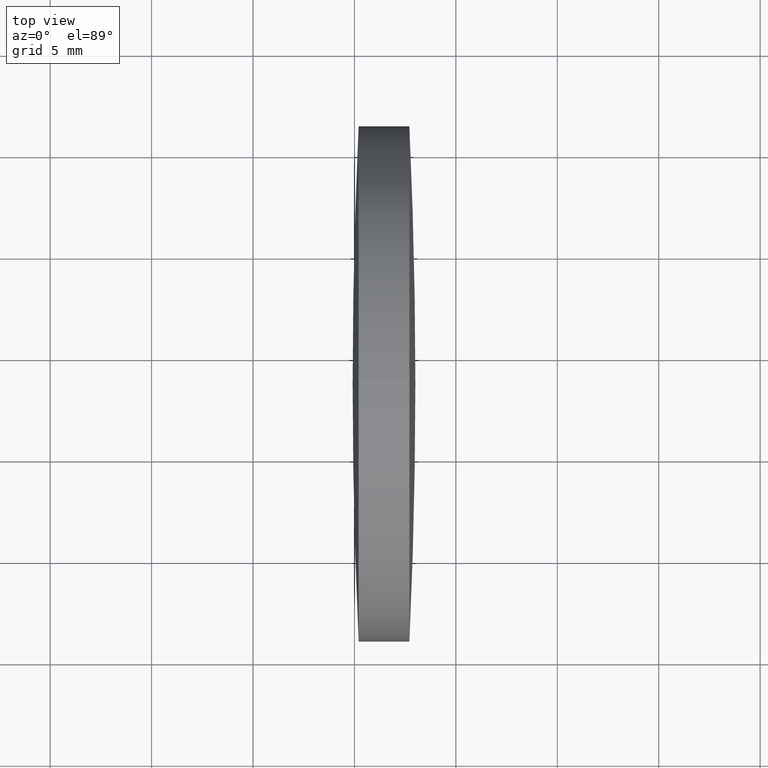
[diagram: clean part render]
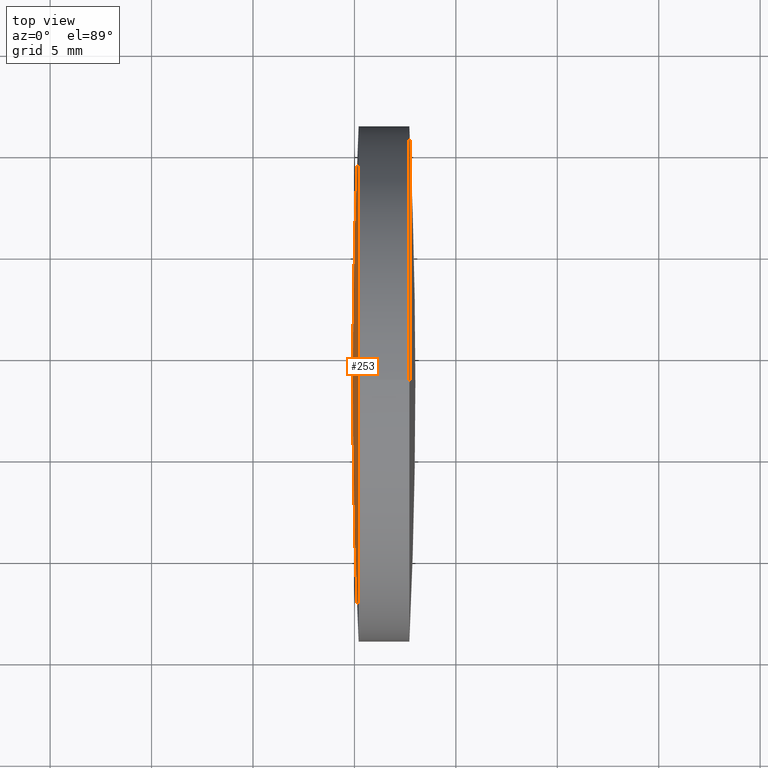
[diagram: same view with one face highlighted and labeled with its STEP entity id]
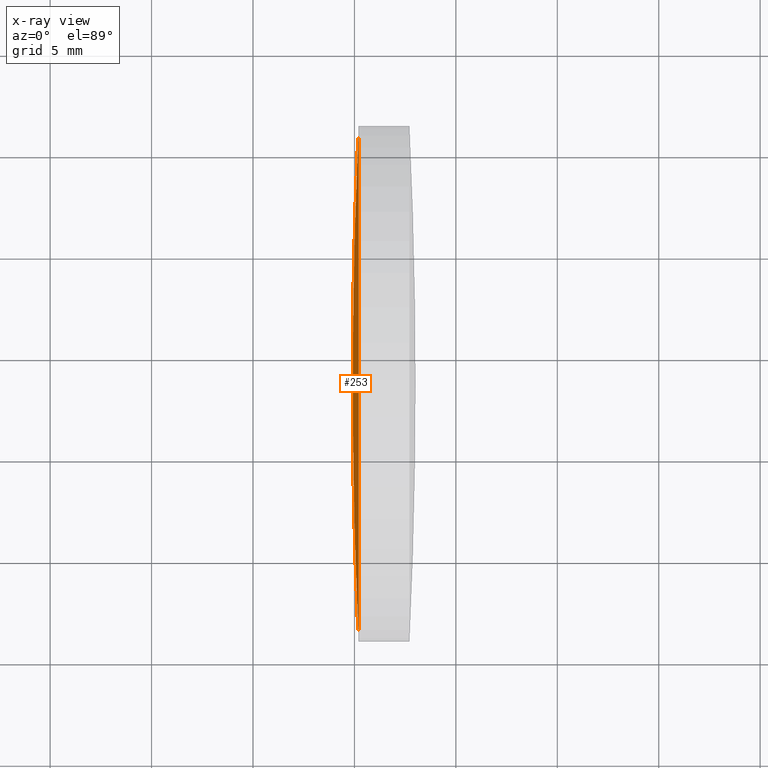
[diagram: x-ray of the same camera — body ghosted, the highlighted face saturated]
A machine part, top view. The second image highlights one B-rep face of the part: STEP entity #253.
The next image is the same camera in x-ray: the body ghosted, the highlighted face saturated — about 0% of this face is hidden behind the body in this view.
In plain terms, the highlighted spherical surface has radius 273.559 mm.
Its self-contained STEP definition (entity closure, byte-faithful):
#8 = DIRECTION ( 'NONE',  ( 0.0000000000000000000, 1.000000000000000000, 1.224646799147353200E-016 ) ) ;
#31 = CARTESIAN_POINT ( 'NONE',  ( 85.20819446037681600, 48.61611302318478100, 0.0000000000000000000 ) ) ;
#41 = CIRCLE ( 'NONE', #137, 12.69999999999999600 ) ;
#44 = CARTESIAN_POINT ( 'NONE',  ( 358.4720611425593100, 48.61611302318401300, 0.0000000000000000000 ) ) ;
#45 = ORIENTED_EDGE ( 'NONE', *, *, #302, .T. ) ;
#58 = ORIENTED_EDGE ( 'NONE', *, *, #92, .T. ) ;
#66 = EDGE_CURVE ( 'NONE', #178, #243, #69, .T. ) ;
#69 = CIRCLE ( 'NONE', #326, 273.5588251804310300 ) ;
#92 = EDGE_CURVE ( 'NONE', #178, #162, #41, .T. ) ;
#116 = DIRECTION ( 'NONE',  ( -0.0000000000000000000, 0.0000000000000000000, -1.000000000000000000 ) ) ;
#120 = CIRCLE ( 'NONE', #280, 12.69999999999999600 ) ;
#123 = FACE_OUTER_BOUND ( 'NONE', #157, .T. ) ;
#126 = AXIS2_PLACEMENT_3D ( 'NONE', #147, #116, #291 ) ;
#137 = AXIS2_PLACEMENT_3D ( 'NONE', #31, #224, #310 ) ;
#147 = CARTESIAN_POINT ( 'NONE',  ( 358.4720611425593100, 48.61611302318401300, 0.0000000000000000000 ) ) ;
#157 = EDGE_LOOP ( 'NONE', ( #247, #58, #45, #267 ) ) ;
#162 = VERTEX_POINT ( 'NONE', #289 ) ;
#178 = VERTEX_POINT ( 'NONE', #204 ) ;
#182 = DIRECTION ( 'NONE',  ( 1.000000000000000000, 0.0000000000000000000, 0.0000000000000000000 ) ) ;
#204 = CARTESIAN_POINT ( 'NONE',  ( 85.20819446037680200, 35.91611302318423100, -1.555301434917111200E-015 ) ) ;
#205 = AXIS2_PLACEMENT_3D ( 'NONE', #44, #213, #182 ) ;
#210 = CARTESIAN_POINT ( 'NONE',  ( 85.20819446037681600, 48.61611302318478100, 0.0000000000000000000 ) ) ;
#213 = DIRECTION ( 'NONE',  ( -0.0000000000000000000, 0.0000000000000000000, 1.000000000000000000 ) ) ;
#215 = DIRECTION ( 'NONE',  ( 0.0000000000000000000, 0.0000000000000000000, 1.000000000000000000 ) ) ;
#223 = DIRECTION ( 'NONE',  ( 0.0000000000000000000, 1.224646799147353200E-016, -1.000000000000000000 ) ) ;
#224 = DIRECTION ( 'NONE',  ( -1.000000000000000000, -0.0000000000000000000, -0.0000000000000000000 ) ) ;
#239 = DIRECTION ( 'NONE',  ( -1.000000000000000000, -0.0000000000000000000, -0.0000000000000000000 ) ) ;
#243 = VERTEX_POINT ( 'NONE', #312 ) ;
#247 = ORIENTED_EDGE ( 'NONE', *, *, #66, .F. ) ;
#249 = VERTEX_POINT ( 'NONE', #339 ) ;
#253 = ADVANCED_FACE ( 'NONE', ( #123 ), #338, .T. ) ;
#266 = CIRCLE ( 'NONE', #205, 273.5588251804310300 ) ;
#267 = ORIENTED_EDGE ( 'NONE', *, *, #272, .T. ) ;
#272 = EDGE_CURVE ( 'NONE', #249, #243, #266, .T. ) ;
#280 = AXIS2_PLACEMENT_3D ( 'NONE', #210, #239, #215 ) ;
#289 = CARTESIAN_POINT ( 'NONE',  ( 85.20819446037681600, 48.61611302318478100, 12.69999999999999600 ) ) ;
#291 = DIRECTION ( 'NONE',  ( 0.0000000000000000000, 1.000000000000000000, 0.0000000000000000000 ) ) ;
#302 = EDGE_CURVE ( 'NONE', #162, #249, #120, .T. ) ;
#310 = DIRECTION ( 'NONE',  ( 0.0000000000000000000, 0.0000000000000000000, 1.000000000000000000 ) ) ;
#312 = CARTESIAN_POINT ( 'NONE',  ( 84.91323596212829700, 48.61611302318402700, 0.0000000000000000000 ) ) ;
#326 = AXIS2_PLACEMENT_3D ( 'NONE', #335, #223, #8 ) ;
#335 = CARTESIAN_POINT ( 'NONE',  ( 358.4720611425593100, 48.61611302318401300, 0.0000000000000000000 ) ) ;
#338 = SPHERICAL_SURFACE ( 'NONE', #126, 273.5588251804310300 ) ;
#339 = CARTESIAN_POINT ( 'NONE',  ( 85.20819446037680200, 61.31611302318455600, 0.0000000000000000000 ) ) ;